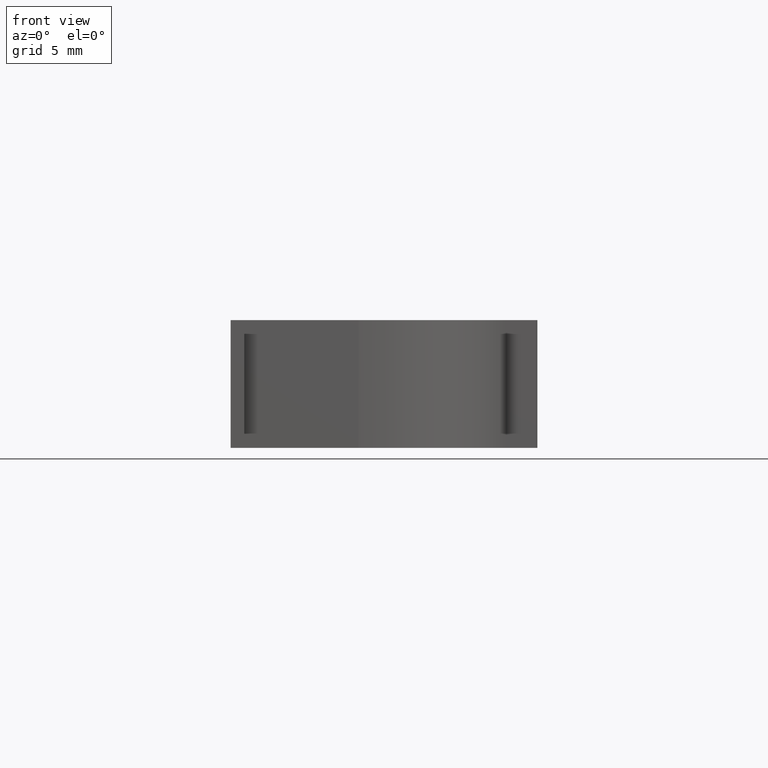
[diagram: clean part render]
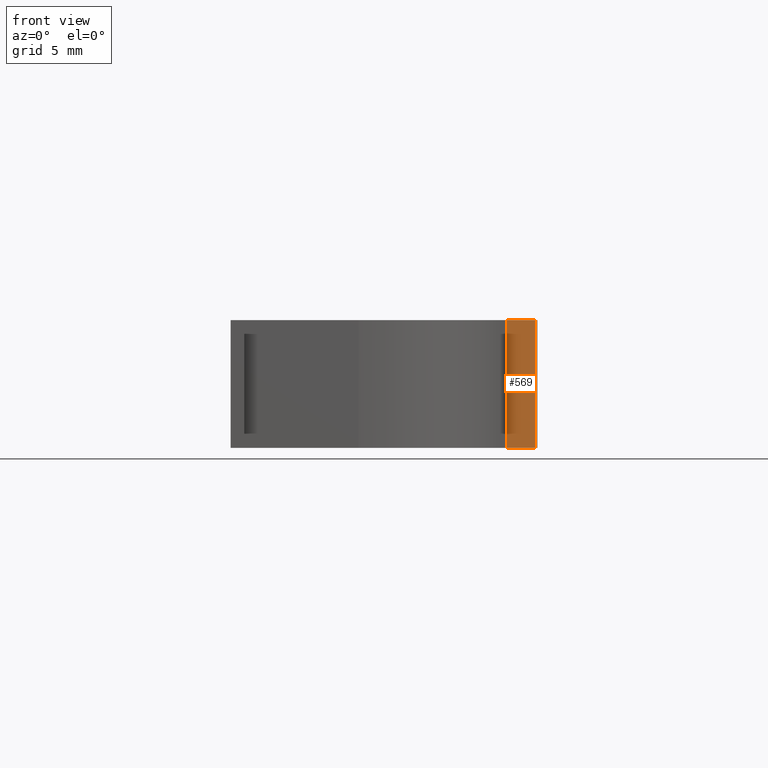
[diagram: same view with one face highlighted and labeled with its STEP entity id]
A machine part, front view. The second image highlights one B-rep face of the part: STEP entity #569.
In plain terms, the highlighted planar face has unit normal (-0, 1, 0).
Its self-contained STEP definition (entity closure, byte-faithful):
#33=FACE_OUTER_BOUND('',#63,.T.);
#63=EDGE_LOOP('',(#377,#378,#379,#380));
#93=LINE('',#805,#165);
#94=LINE('',#807,#166);
#95=LINE('',#809,#167);
#96=LINE('',#810,#168);
#165=VECTOR('',#647,2.29055492974429);
#166=VECTOR('',#648,10.);
#167=VECTOR('',#649,2.29055492974429);
#168=VECTOR('',#650,10.);
#237=VERTEX_POINT('',#803);
#238=VERTEX_POINT('',#804);
#239=VERTEX_POINT('',#806);
#240=VERTEX_POINT('',#808);
#293=EDGE_CURVE('',#237,#238,#93,.T.);
#294=EDGE_CURVE('',#239,#237,#94,.T.);
#295=EDGE_CURVE('',#240,#239,#95,.T.);
#296=EDGE_CURVE('',#240,#238,#96,.T.);
#377=ORIENTED_EDGE('',*,*,#293,.F.);
#378=ORIENTED_EDGE('',*,*,#294,.F.);
#379=ORIENTED_EDGE('',*,*,#295,.F.);
#380=ORIENTED_EDGE('',*,*,#296,.T.);
#545=PLANE('',#601);
#569=ADVANCED_FACE('',(#33),#545,.F.);
#601=AXIS2_PLACEMENT_3D('',#802,#645,#646);
#645=DIRECTION('center_axis',(-9.69392185455338E-16,1.,0.));
#646=DIRECTION('ref_axis',(0.,0.,1.));
#647=DIRECTION('',(-1.,-9.69392185455338E-16,0.));
#648=DIRECTION('',(0.,0.,-1.));
#649=DIRECTION('',(1.,9.69392185455338E-16,0.));
#650=DIRECTION('',(0.,0.,-1.));
#802=CARTESIAN_POINT('Origin',(3.86423195997113,7.70000000000003,5.));
#803=CARTESIAN_POINT('',(3.86423195997113,7.70000000000003,-5.));
#804=CARTESIAN_POINT('',(1.57367703022684,7.70000000000002,-5.));
#805=CARTESIAN_POINT('',(0.745043912533374,7.70000000000002,-5.));
#806=CARTESIAN_POINT('',(3.86423195997113,7.70000000000003,5.));
#807=CARTESIAN_POINT('',(3.86423195997112,7.70000000000003,0.));
#808=CARTESIAN_POINT('',(1.57367703022684,7.70000000000002,5.));
#809=CARTESIAN_POINT('',(0.745043912533373,7.70000000000002,5.));
#810=CARTESIAN_POINT('',(1.57367703022684,7.70000000000002,5.));